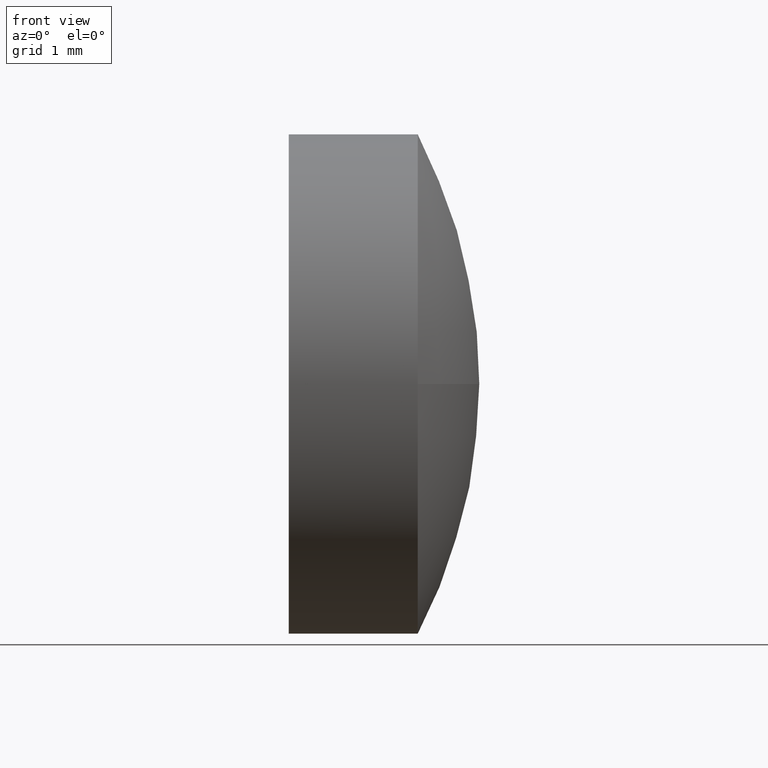
[diagram: clean part render]
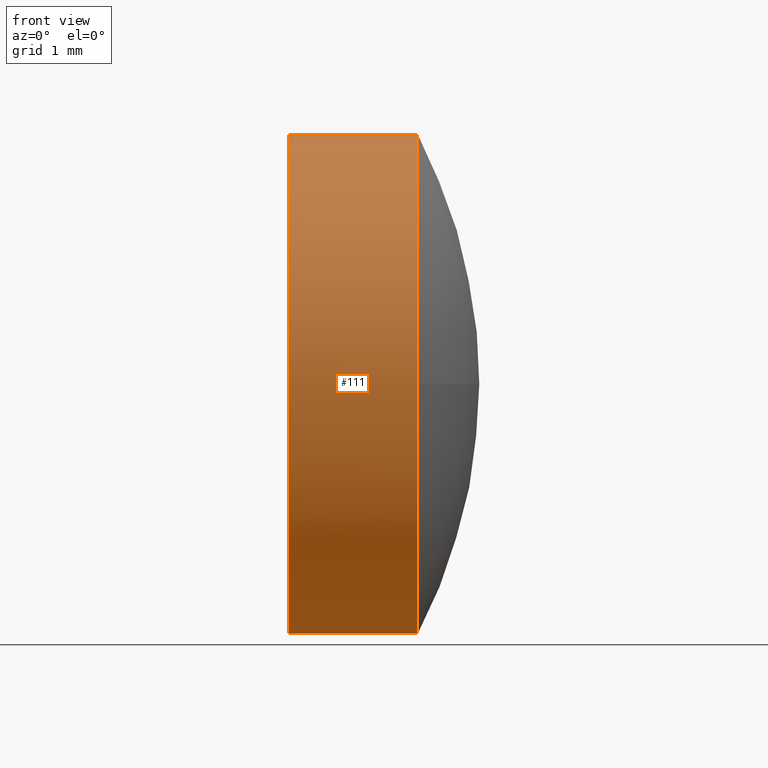
[diagram: same view with one face highlighted and labeled with its STEP entity id]
A machine part, front view. The second image highlights one B-rep face of the part: STEP entity #111.
In plain terms, the highlighted cylindrical surface (partial cylindrical patch) has radius 3 mm, axis along (-1, -0, -0).
Its self-contained STEP definition (entity closure, byte-faithful):
#4 = ORIENTED_EDGE ( 'NONE', *, *, #204, .T. ) ;
#9 = ORIENTED_EDGE ( 'NONE', *, *, #89, .F. ) ;
#10 = CARTESIAN_POINT ( 'NONE',  ( 2.652301464341483950, 0.5942976565702010605, -3.000000000000000000 ) ) ;
#15 = CIRCLE ( 'NONE', #150, 3.000000000000000000 ) ;
#21 = DIRECTION ( 'NONE',  ( 0.000000000000000000, 0.000000000000000000, 1.000000000000000000 ) ) ;
#26 = EDGE_CURVE ( 'NONE', #138, #57, #15, .T. ) ;
#28 = DIRECTION ( 'NONE',  ( -1.000000000000000000, -0.000000000000000000, -0.000000000000000000 ) ) ;
#40 = CARTESIAN_POINT ( 'NONE',  ( 2.652301464341484394, 0.5942976565702007274, 3.000000000000000000 ) ) ;
#48 = DIRECTION ( 'NONE',  ( -1.000000000000000000, -0.000000000000000000, -0.000000000000000000 ) ) ;
#51 = DIRECTION ( 'NONE',  ( 0.000000000000000000, 0.000000000000000000, 1.000000000000000000 ) ) ;
#55 = ORIENTED_EDGE ( 'NONE', *, *, #26, .T. ) ;
#57 = VERTEX_POINT ( 'NONE', #163 ) ;
#58 = CARTESIAN_POINT ( 'NONE',  ( 2.652301464341483950, 0.5942976565702007274, 0.000000000000000000 ) ) ;
#62 = CARTESIAN_POINT ( 'NONE',  ( 2.652301464341483950, 0.5942976565702007274, 3.000000000000000000 ) ) ;
#64 = CIRCLE ( 'NONE', #95, 3.000000000000000000 ) ;
#89 = EDGE_CURVE ( 'NONE', #157, #170, #132, .T. ) ;
#91 = AXIS2_PLACEMENT_3D ( 'NONE', #58, #174, #94 ) ;
#93 = DIRECTION ( 'NONE',  ( -1.000000000000000000, -0.000000000000000000, -0.000000000000000000 ) ) ;
#94 = DIRECTION ( 'NONE',  ( 0.000000000000000000, 0.000000000000000000, 1.000000000000000000 ) ) ;
#95 = AXIS2_PLACEMENT_3D ( 'NONE', #126, #109, #51 ) ;
#97 = LINE ( 'NONE', #40, #201 ) ;
#99 = DIRECTION ( 'NONE',  ( 0.000000000000000000, 0.000000000000000000, 1.000000000000000000 ) ) ;
#103 = AXIS2_PLACEMENT_3D ( 'NONE', #144, #180, #21 ) ;
#107 = VERTEX_POINT ( 'NONE', #62 ) ;
#109 = DIRECTION ( 'NONE',  ( -1.000000000000000000, -0.000000000000000000, -0.000000000000000000 ) ) ;
#111 = ADVANCED_FACE ( 'NONE', ( #177 ), #149, .T. ) ;
#117 = ORIENTED_EDGE ( 'NONE', *, *, #202, .F. ) ;
#121 = ORIENTED_EDGE ( 'NONE', *, *, #183, .T. ) ;
#126 = CARTESIAN_POINT ( 'NONE',  ( 4.202301464341483772, 0.5942976565702007274, 0.000000000000000000 ) ) ;
#127 = CARTESIAN_POINT ( 'NONE',  ( 2.652301464341484394, 0.5942976565702010605, -3.000000000000000000 ) ) ;
#132 = LINE ( 'NONE', #127, #197 ) ;
#138 = VERTEX_POINT ( 'NONE', #139 ) ;
#139 = CARTESIAN_POINT ( 'NONE',  ( 4.202301464341483772, -2.405702343429799495, -3.673940397442060361E-16 ) ) ;
#143 = CARTESIAN_POINT ( 'NONE',  ( 4.202301464341483772, 0.5942976565702007274, 0.000000000000000000 ) ) ;
#144 = CARTESIAN_POINT ( 'NONE',  ( 2.652301464341484394, 0.5942976565702007274, 0.000000000000000000 ) ) ;
#149 = CYLINDRICAL_SURFACE ( 'NONE', #103, 3.000000000000000000 ) ;
#150 = AXIS2_PLACEMENT_3D ( 'NONE', #143, #28, #99 ) ;
#157 = VERTEX_POINT ( 'NONE', #219 ) ;
#163 = CARTESIAN_POINT ( 'NONE',  ( 4.202301464341483772, 0.5942976565702007274, 3.000000000000000000 ) ) ;
#170 = VERTEX_POINT ( 'NONE', #10 ) ;
#174 = DIRECTION ( 'NONE',  ( -1.000000000000000000, -0.000000000000000000, -0.000000000000000000 ) ) ;
#177 = FACE_OUTER_BOUND ( 'NONE', #190, .T. ) ;
#180 = DIRECTION ( 'NONE',  ( -1.000000000000000000, -0.000000000000000000, -0.000000000000000000 ) ) ;
#182 = CIRCLE ( 'NONE', #91, 3.000000000000000000 ) ;
#183 = EDGE_CURVE ( 'NONE', #157, #138, #64, .T. ) ;
#190 = EDGE_LOOP ( 'NONE', ( #9, #121, #55, #4, #117 ) ) ;
#197 = VECTOR ( 'NONE', #48, 1000.000000000000000 ) ;
#201 = VECTOR ( 'NONE', #93, 1000.000000000000000 ) ;
#202 = EDGE_CURVE ( 'NONE', #170, #107, #182, .T. ) ;
#204 = EDGE_CURVE ( 'NONE', #57, #107, #97, .T. ) ;
#219 = CARTESIAN_POINT ( 'NONE',  ( 4.202301464341483772, 0.5942976565702010605, -3.000000000000000000 ) ) ;